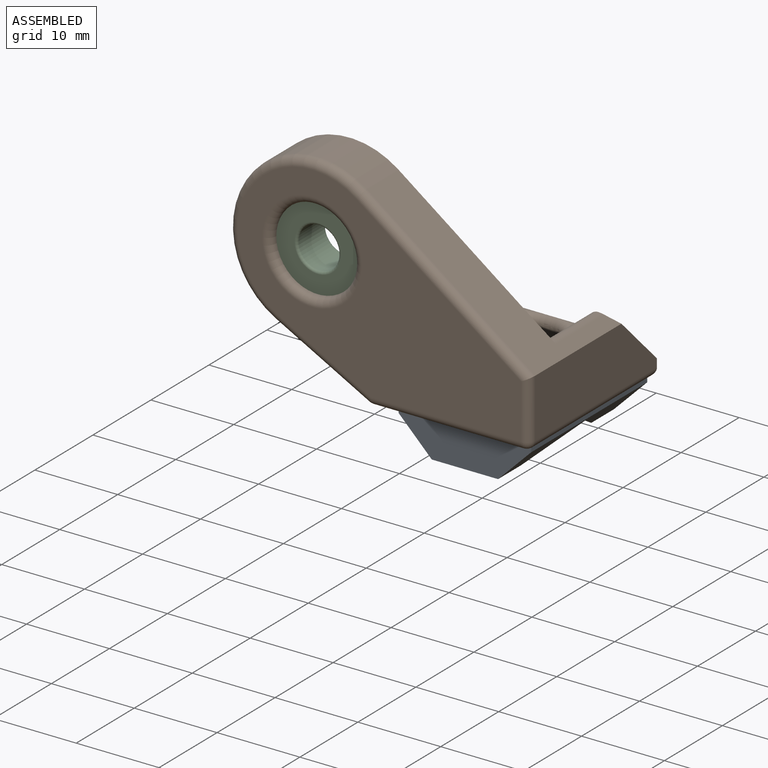
[diagram: assembled view]
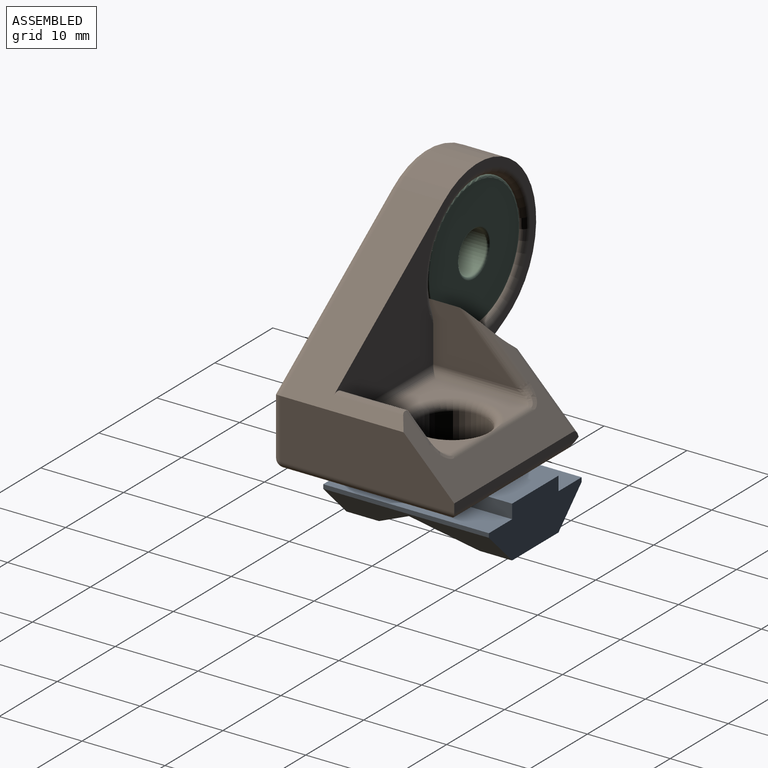
[diagram: assembled view, second angle]
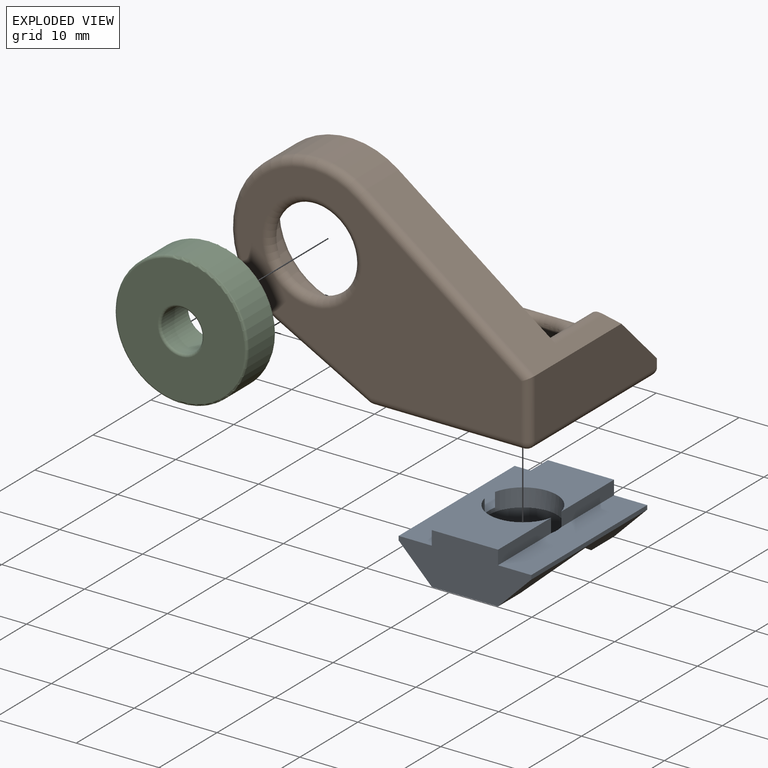
[diagram: exploded view]
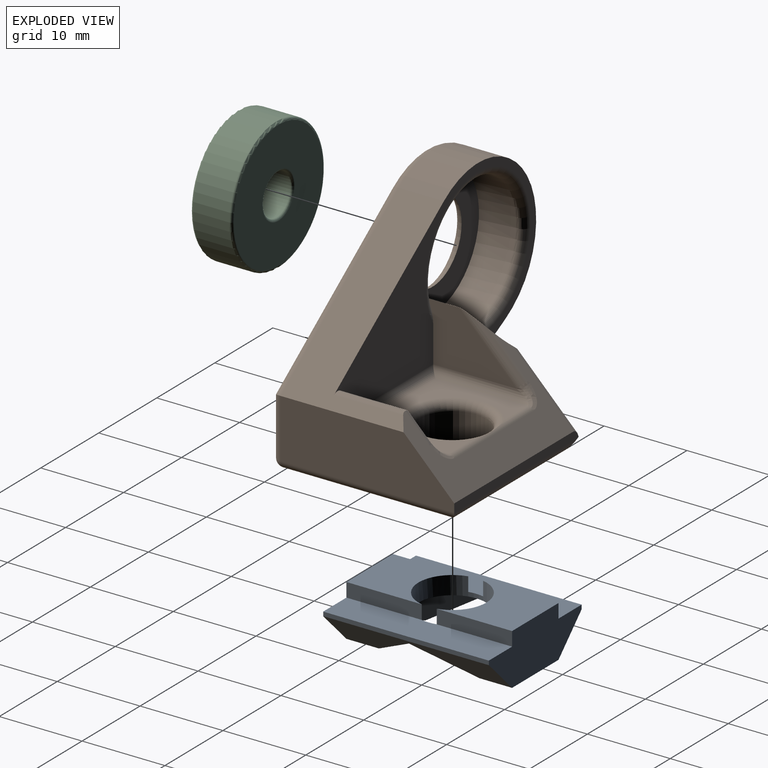
[diagram: exploded view, second angle]
ASSEMBLY  parts=3 mates=2
PART A: 24 faces, bbox 16x20x6.2 mm
  f0: plane 20x0.5mm, normal (-1,0,0), area 10mm2, adj f2,f3,f17,f23
  f1: plane 20x0.5mm, normal (1,0,0), area 10mm2, adj f2,f3,f20,f22
  f2: plane 16x6.2mm, normal (0,1,0), area 69.6mm2, adj f0,f1,f7,f10,f16,f17,f19,f20
  f3: plane 16x6.2mm, normal (0,-1,0), area 69.6mm2, adj f0,f1,f6,f9,f17,f18,f20,f21
  f4: plane 6.5x4mm, normal (-0.87,-0.5,0), area 17.7mm2, adj f5,f7,f14,f15,f22
  f5: plane 6.5x4mm, normal (-0.87,0.5,0), area 17.7mm2, adj f4,f6,f11,f15,f22
  f6: plane 8x3.93mm, normal (0,0,-1), area 28.1mm2, adj f3,f5,f11,f12,f22,f23
  f7: plane 8x3.93mm, normal (0,0,-1), area 28.1mm2, adj f2,f4,f13,f14,f22,f23
  f8: cylinder r=4.1mm len=8.2mm, axis (0,0,-1), area 50.5mm2, adj f9,f10,f15,f16,f17,f18,f19,f20
  f9: plane 9.1x8mm, normal (0,0,1), area 53.7mm2, adj f3,f8,f18,f21
  f10: plane 9.1x8mm, normal (0,0,1), area 53.7mm2, adj f2,f8,f16,f19
  f11: plane 7.51x4mm, normal (0,1,0), area 30mm2, adj f5,f6,f12,f15
  f12: plane 6.5x4mm, normal (0.87,0.5,0), area 17.7mm2, adj f6,f11,f13,f15,f23
  f13: plane 6.5x4mm, normal (0.87,-0.5,0), area 17.7mm2, adj f7,f12,f14,f15,f23
  f14: plane 7.51x4mm, normal (0,-1,0), area 30mm2, adj f4,f7,f13,f15
  f15: plane 15.01x13mm, normal (0,0,-1), area 93.5mm2, adj f4,f5,f8,f11,f12,f13,f14
  f16: plane 9.1x1.7mm, normal (-1,0,0), area 15.5mm2, adj f2,f8,f10,f17
  f17: plane 20x4mm, normal (0,0,1), area 79.9mm2, adj f0,f2,f3,f8,f16,f18
  f18: plane 9.1x1.7mm, normal (-1,0,0), area 15.5mm2, adj f3,f8,f9,f17
  f19: plane 9.1x1.7mm, normal (1,0,0), area 15.5mm2, adj f2,f8,f10,f20
  f20: plane 20x4mm, normal (0,0,1), area 79.9mm2, adj f1,f2,f3,f8,f19,f21
  f21: plane 9.1x1.7mm, normal (1,0,0), area 15.5mm2, adj f3,f8,f9,f20
  f22: plane 20x4mm, normal (0.71,0,-0.71), area 83mm2, adj f1,f2,f3,f4,f5,f6,f7
  f23: plane 20x4mm, normal (-0.71,0,-0.71), area 83mm2, adj f0,f2,f3,f6,f7,f12,f13
PART B: 43 faces, bbox 22.5x25.9x37.2 mm
  f0: plane 20.33x14.94mm, normal (0,-0.81,-0.59), area 154.2mm2, adj f4,f8,f10,f15,f23,f38
  f1: plane 34.25x23mm, normal (-1,0,0), area 399.6mm2, adj f32,f35,f37,f38,f40,f42
  f2: plane 11.09x7.02mm, normal (0,0,-1), area 46.8mm2, adj f9,f10,f16,f17,f26
  f3: plane 13.96x6.95mm, normal (0,0,1), area 72.8mm2, adj f7,f27,f29,f30
  f4: plane 20.59x8.8mm, normal (0.71,-0.71,0), area 100.1mm2, adj f0,f9,f11,f15,f17,f20,f22,f23
  f5: plane 16x16mm, normal (1,0,0), area 122.5mm2, adj f9,f42
  f6: plane 20x18.14mm, normal (0,1,0), area 281mm2, adj f31,f33,f36,f37,f41
  f7: plane 21.02x11.37mm, normal (0,0.88,0.47), area 104mm2, adj f3,f8,f10,f11,f27,f29,f31,f32
  f8: cylinder r=10mm len=18.82mm, axis (1,0,0), area 180.7mm2, adj f0,f7,f10,f35
  f9: cylinder r=8mm len=16mm, axis (-1,0,0), area 264.7mm2, adj f2,f4,f5,f17,f26,f28,f29,f30
  f10: plane 34.84x23.34mm, normal (1,0,0), area 203.3mm2, adj f0,f2,f7,f8,f14,f18,f23,f26
  f11: plane 21.43x1mm, normal (1,0,0), area 21.2mm2, adj f4,f7,f15,f29,f33
  f12: cylinder r=4.1mm len=8.2mm, axis (0,1,0), area 77.3mm2, adj f19,f41
  f13: plane 13.5x11.09mm, normal (0,-1,0), area 70.7mm2, adj f16,f18,f19,f21,f22
  f14: plane 10.09x2.35mm, normal (0,0,1), area 20.9mm2, adj f10,f21,f23,f25
  f15: plane 21x7.12mm, normal (0,0,-1), area 130.8mm2, adj f0,f4,f11,f36,f40
  f16: cylinder r=1mm len=12.09mm, axis (-1,0,0), area 17.3mm2, adj f2,f13,f18,f20
  f17: cylinder r=1mm len=7.72mm, axis (-0.71,-0.71,0), area 12.2mm2, adj f2,f4,f9,f20
  f18: cylinder r=1mm len=15.5mm, axis (0,0,1), area 23.2mm2, adj f10,f13,f16,f21
  f19: torus R=5.1mm, axis (0,1,0), area 42.6mm2, adj f12,f13,f22
  f20: bspline ~3.05x2.35mm, area 3.5mm2, adj f4,f16,f17,f22
  f21: cylinder r=1mm len=12.09mm, axis (1,0,0), area 17.3mm2, adj f13,f14,f18,f24
  f22: cylinder r=1mm len=13.5mm, axis (0,0,1), area 9.2mm2, adj f4,f13,f19,f20,f24
  f23: cylinder r=1mm len=8.34mm, axis (-1,0,0), area 17.7mm2, adj f0,f4,f10,f14,f25
  f24: bspline ~3.05x2.35mm, area 3.5mm2, adj f4,f21,f22,f25
  f25: cylinder r=1mm len=3.35mm, axis (-0.71,-0.71,0), area 5.5mm2, adj f4,f14,f23,f24
  f26: torus R=9mm, axis (1,0,0), area 72.5mm2, adj f2,f9,f10,f28
  f27: cylinder r=1mm len=6.95mm, axis (0,-1,0), area 9.8mm2, adj f3,f7,f10,f28
  f28: bspline ~2.38x2.14mm, area 2.9mm2, adj f9,f26,f27,f30
  f29: cylinder r=1mm len=8.6mm, axis (-0.71,-0.71,0), area 16.1mm2, adj f3,f4,f7,f9,f11,f30
  f30: cylinder r=1mm len=7.33mm, axis (-1,0,0), area 6.3mm2, adj f3,f9,f28,f29
  f31: cylinder r=1mm len=20.47mm, axis (1,0,0), area 9.9mm2, adj f6,f7,f33,f34
  f32: cylinder r=1mm len=11.82mm, axis (0,0.47,-0.88), area 20.2mm2, adj f1,f7,f34,f35
  f33: cylinder r=1mm len=21.26mm, axis (0,0,-1), area 30.9mm2, adj f6,f7,f11,f31,f36
  f34: sphere r=1mm, area 0.5mm2, adj f31,f32,f37
  f35: torus R=9mm, axis (1,0,0), area 49.7mm2, adj f1,f8,f32,f38
  f36: cylinder r=1mm len=21mm, axis (-1,0,0), area 32.4mm2, adj f6,f15,f33,f39
  f37: cylinder r=1mm len=18.14mm, axis (0,0,-1), area 28.5mm2, adj f1,f6,f34,f39
  f38: cylinder r=1mm len=20.92mm, axis (0,-0.59,0.81), area 39.3mm2, adj f0,f1,f35,f40
  f39: sphere r=1mm, area 1.6mm2, adj f36,f37,f40
  f40: cylinder r=1mm len=7.12mm, axis (0,1,0), area 10.9mm2, adj f1,f15,f38,f39
  f41: torus R=5.1mm, axis (0,1,0), area 44.1mm2, adj f6,f12
  f42: torus R=6mm, axis (1,0,0), area 52.9mm2, adj f1,f5
PART C: 8 faces, bbox 17.3x17.3x5 mm
  f0: cylinder r=2.5mm len=5mm, axis (0,0,-1), area 69.1mm2, adj f4,f6
  f1: cylinder r=8mm len=16mm, axis (0,0,-1), area 221.2mm2, adj f5,f7
  f2: plane 15.4x15.4mm, normal (0,0,1), area 161.6mm2, adj f6,f7
  f3: plane 15.4x15.4mm, normal (0,0,-1), area 161.6mm2, adj f4,f5
  f4: torus R=2.8mm, axis (0,0,1), area 7.7mm2, adj f0,f3
  f5: torus R=7.7mm, axis (0,0,1), area 23.4mm2, adj f1,f3
  f6: torus R=2.8mm, axis (0,0,1), area 7.7mm2, adj f0,f2
  f7: torus R=7.7mm, axis (0,0,1), area 23.4mm2, adj f1,f2
PLACE A t=(-57.17,-21.31,46.77)mm
PLACE B rot(axis=(-0.58,-0.58,0.58),120deg) t=(-17.67,-34.56,63.97)mm
PLACE C rot(axis=(1,0,0),90deg) t=(-72.67,-29.56,63.97)mm
MATE fastened B.f9 <-> C.f1  axis (0,1,0) through (-72.67,-34.56,63.97)mm
MATE slider B.f41 <-> A.f8  axis (0,0,-1) through (-57.17,-21.31,48.97)mm
